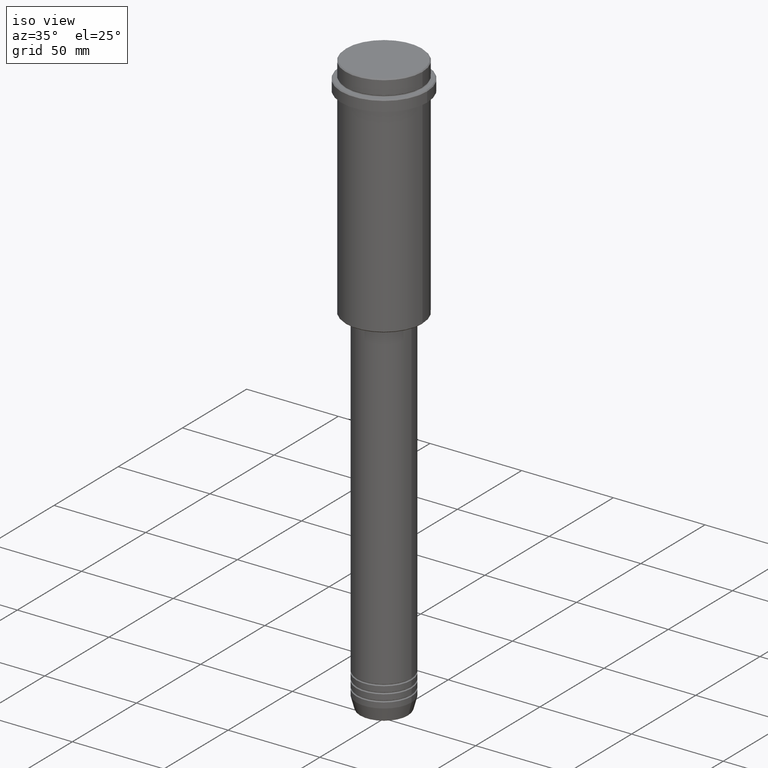
[diagram: clean part render]
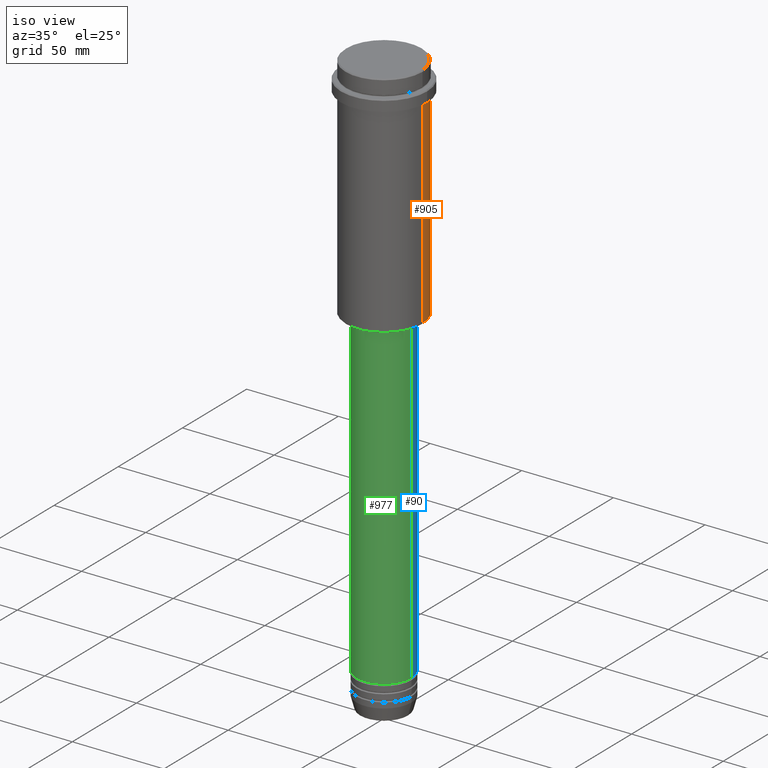
[diagram: same view with three faces highlighted in distinct colors, each labeled with its STEP entity id]
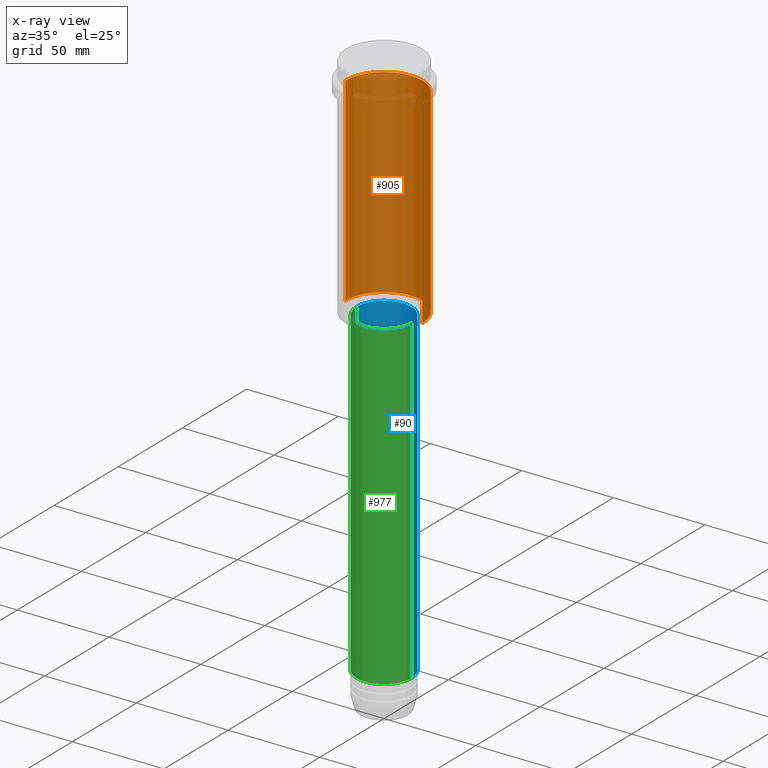
[diagram: x-ray of the same camera — body ghosted, the three highlighted faces saturated]
A machine part, iso view with three faces highlighted in distinct colors.
The next image is the same camera in x-ray (body ghosted, the three faces saturated) — at least one of them is partly hidden behind the body in this view.
Their STEP definitions:

[orange] entity #905 — the highlighted cylindrical surface (partial cylindrical patch) has radius 21 mm, axis along (-0, -0, 1).
#7 = AXIS2_PLACEMENT_3D ( 'NONE', #324, #994, #13 ) ;
#13 = DIRECTION ( 'NONE',  ( 1.000000000000000000, 0.000000000000000000, 0.000000000000000000 ) ) ;
#28 = EDGE_CURVE ( 'NONE', #831, #1359, #238, .T. ) ;
#57 = EDGE_CURVE ( 'NONE', #351, #1254, #128, .T. ) ;
#87 = DIRECTION ( 'NONE',  ( -0.000000000000000000, -0.000000000000000000, 1.000000000000000000 ) ) ;
#128 = LINE ( 'NONE', #356, #621 ) ;
#145 = ORIENTED_EDGE ( 'NONE', *, *, #1114, .F. ) ;
#168 = DIRECTION ( 'NONE',  ( -1.000000000000000000, 0.000000000000000000, 0.000000000000000000 ) ) ;
#187 = CIRCLE ( 'NONE', #7, 20.99999999999999645 ) ;
#194 = DIRECTION ( 'NONE',  ( 1.000000000000000000, 0.000000000000000000, 0.000000000000000000 ) ) ;
#235 = AXIS2_PLACEMENT_3D ( 'NONE', #1182, #87, #168 ) ;
#238 = LINE ( 'NONE', #1320, #1233 ) ;
#268 = ORIENTED_EDGE ( 'NONE', *, *, #28, .F. ) ;
#324 = CARTESIAN_POINT ( 'NONE',  ( 0.000000000000000000, 0.000000000000000000, -16.00000000000000355 ) ) ;
#351 = VERTEX_POINT ( 'NONE', #852 ) ;
#356 = CARTESIAN_POINT ( 'NONE',  ( -20.99999999999999645, 2.571758278209441267E-15, 0.000000000000000000 ) ) ;
#404 = CARTESIAN_POINT ( 'NONE',  ( 0.000000000000000000, 0.000000000000000000, 0.000000000000000000 ) ) ;
#522 = EDGE_LOOP ( 'NONE', ( #1227, #533, #145, #268 ) ) ;
#524 = CARTESIAN_POINT ( 'NONE',  ( 20.99999999999999645, 0.000000000000000000, -16.00000000000000355 ) ) ;
#533 = ORIENTED_EDGE ( 'NONE', *, *, #57, .T. ) ;
#613 = FACE_OUTER_BOUND ( 'NONE', #522, .T. ) ;
#621 = VECTOR ( 'NONE', #1095, 1000.000000000000000 ) ;
#666 = DIRECTION ( 'NONE',  ( -0.000000000000000000, -0.000000000000000000, 1.000000000000000000 ) ) ;
#767 = AXIS2_PLACEMENT_3D ( 'NONE', #404, #1177, #194 ) ;
#831 = VERTEX_POINT ( 'NONE', #1360 ) ;
#834 = CIRCLE ( 'NONE', #235, 20.99999999999999645 ) ;
#852 = CARTESIAN_POINT ( 'NONE',  ( -20.99999999999999645, 2.571758278209441267E-15, -124.4999999999999005 ) ) ;
#905 = ADVANCED_FACE ( 'NONE', ( #613 ), #948, .T. ) ;
#908 = CARTESIAN_POINT ( 'NONE',  ( -20.99999999999999645, 2.571758278209441267E-15, -16.00000000000000355 ) ) ;
#948 = CYLINDRICAL_SURFACE ( 'NONE', #767, 20.99999999999999645 ) ;
#994 = DIRECTION ( 'NONE',  ( -0.000000000000000000, -0.000000000000000000, 1.000000000000000000 ) ) ;
#1095 = DIRECTION ( 'NONE',  ( -0.000000000000000000, -0.000000000000000000, 1.000000000000000000 ) ) ;
#1114 = EDGE_CURVE ( 'NONE', #1359, #1254, #187, .T. ) ;
#1177 = DIRECTION ( 'NONE',  ( -0.000000000000000000, -0.000000000000000000, 1.000000000000000000 ) ) ;
#1182 = CARTESIAN_POINT ( 'NONE',  ( 0.000000000000000000, 0.000000000000000000, -124.4999999999999005 ) ) ;
#1227 = ORIENTED_EDGE ( 'NONE', *, *, #1371, .T. ) ;
#1233 = VECTOR ( 'NONE', #666, 1000.000000000000000 ) ;
#1254 = VERTEX_POINT ( 'NONE', #908 ) ;
#1320 = CARTESIAN_POINT ( 'NONE',  ( 20.99999999999999645, 0.000000000000000000, 0.000000000000000000 ) ) ;
#1359 = VERTEX_POINT ( 'NONE', #524 ) ;
#1360 = CARTESIAN_POINT ( 'NONE',  ( 20.99999999999999645, 0.000000000000000000, -124.4999999999999005 ) ) ;
#1371 = EDGE_CURVE ( 'NONE', #831, #351, #834, .T. ) ;

[blue] entity #90 — the highlighted cylindrical surface (edge-blend (fillet) strip) has radius 15 mm, axis along (-0, -0, 1).
#4 = VERTEX_POINT ( 'NONE', #675 ) ;
#6 = VERTEX_POINT ( 'NONE', #579 ) ;
#14 = FACE_OUTER_BOUND ( 'NONE', #258, .T. ) ;
#90 = ADVANCED_FACE ( 'NONE', ( #14 ), #661, .T. ) ;
#132 = AXIS2_PLACEMENT_3D ( 'NONE', #1315, #1213, #228 ) ;
#176 = DIRECTION ( 'NONE',  ( -0.000000000000000000, -0.000000000000000000, 1.000000000000000000 ) ) ;
#202 = VERTEX_POINT ( 'NONE', #504 ) ;
#228 = DIRECTION ( 'NONE',  ( 1.000000000000000000, 0.000000000000000000, 0.000000000000000000 ) ) ;
#258 = EDGE_LOOP ( 'NONE', ( #349, #900, #1196, #931 ) ) ;
#286 = DIRECTION ( 'NONE',  ( 1.000000000000000000, 0.000000000000000000, 0.000000000000000000 ) ) ;
#349 = ORIENTED_EDGE ( 'NONE', *, *, #622, .T. ) ;
#371 = VECTOR ( 'NONE', #176, 1000.000000000000000 ) ;
#389 = CARTESIAN_POINT ( 'NONE',  ( 0.000000000000000000, 0.000000000000000000, -125.9999999999999147 ) ) ;
#414 = DIRECTION ( 'NONE',  ( 1.000000000000000000, 0.000000000000000000, 0.000000000000000000 ) ) ;
#446 = CIRCLE ( 'NONE', #1305, 15.00000000000000000 ) ;
#465 = VECTOR ( 'NONE', #1136, 1000.000000000000000 ) ;
#504 = CARTESIAN_POINT ( 'NONE',  ( -15.00000000000000000, 1.836970198721029589E-15, -125.9999999999999147 ) ) ;
#507 = CARTESIAN_POINT ( 'NONE',  ( 0.000000000000000000, 0.000000000000000000, -300.9999999999998863 ) ) ;
#579 = CARTESIAN_POINT ( 'NONE',  ( 15.00000000000000000, 0.000000000000000000, -300.9999999999998863 ) ) ;
#622 = EDGE_CURVE ( 'NONE', #6, #4, #446, .T. ) ;
#629 = CIRCLE ( 'NONE', #1220, 15.00000000000000000 ) ;
#630 = CARTESIAN_POINT ( 'NONE',  ( 15.00000000000000000, 0.000000000000000000, 0.000000000000000000 ) ) ;
#661 = CYLINDRICAL_SURFACE ( 'NONE', #132, 15.00000000000000000 ) ;
#675 = CARTESIAN_POINT ( 'NONE',  ( -15.00000000000000000, 1.836970198721029589E-15, -300.9999999999998863 ) ) ;
#707 = CARTESIAN_POINT ( 'NONE',  ( 15.00000000000000000, 0.000000000000000000, -125.9999999999999147 ) ) ;
#748 = EDGE_CURVE ( 'NONE', #4, #202, #1040, .T. ) ;
#762 = VERTEX_POINT ( 'NONE', #707 ) ;
#826 = DIRECTION ( 'NONE',  ( -0.000000000000000000, -0.000000000000000000, 1.000000000000000000 ) ) ;
#900 = ORIENTED_EDGE ( 'NONE', *, *, #748, .T. ) ;
#931 = ORIENTED_EDGE ( 'NONE', *, *, #954, .F. ) ;
#954 = EDGE_CURVE ( 'NONE', #6, #762, #968, .T. ) ;
#968 = LINE ( 'NONE', #630, #371 ) ;
#1040 = LINE ( 'NONE', #1045, #465 ) ;
#1045 = CARTESIAN_POINT ( 'NONE',  ( -15.00000000000000000, 1.836970198721029589E-15, 0.000000000000000000 ) ) ;
#1136 = DIRECTION ( 'NONE',  ( -0.000000000000000000, -0.000000000000000000, 1.000000000000000000 ) ) ;
#1196 = ORIENTED_EDGE ( 'NONE', *, *, #1325, .F. ) ;
#1213 = DIRECTION ( 'NONE',  ( -0.000000000000000000, -0.000000000000000000, 1.000000000000000000 ) ) ;
#1220 = AXIS2_PLACEMENT_3D ( 'NONE', #389, #1269, #286 ) ;
#1269 = DIRECTION ( 'NONE',  ( -0.000000000000000000, -0.000000000000000000, 1.000000000000000000 ) ) ;
#1305 = AXIS2_PLACEMENT_3D ( 'NONE', #507, #826, #414 ) ;
#1315 = CARTESIAN_POINT ( 'NONE',  ( 0.000000000000000000, 0.000000000000000000, 0.000000000000000000 ) ) ;
#1325 = EDGE_CURVE ( 'NONE', #762, #202, #629, .T. ) ;

[green] entity #977 — the highlighted cylindrical surface (edge-blend (fillet) strip) has radius 15 mm, axis along (-0, -0, 1).
#4 = VERTEX_POINT ( 'NONE', #675 ) ;
#6 = VERTEX_POINT ( 'NONE', #579 ) ;
#63 = FACE_OUTER_BOUND ( 'NONE', #1248, .T. ) ;
#115 = CIRCLE ( 'NONE', #210, 15.00000000000000000 ) ;
#153 = DIRECTION ( 'NONE',  ( -0.000000000000000000, -0.000000000000000000, 1.000000000000000000 ) ) ;
#176 = DIRECTION ( 'NONE',  ( -0.000000000000000000, -0.000000000000000000, 1.000000000000000000 ) ) ;
#202 = VERTEX_POINT ( 'NONE', #504 ) ;
#210 = AXIS2_PLACEMENT_3D ( 'NONE', #974, #558, #344 ) ;
#344 = DIRECTION ( 'NONE',  ( 1.000000000000000000, 0.000000000000000000, 0.000000000000000000 ) ) ;
#352 = AXIS2_PLACEMENT_3D ( 'NONE', #1115, #153, #1013 ) ;
#371 = VECTOR ( 'NONE', #176, 1000.000000000000000 ) ;
#402 = CIRCLE ( 'NONE', #352, 15.00000000000000000 ) ;
#441 = ORIENTED_EDGE ( 'NONE', *, *, #748, .F. ) ;
#465 = VECTOR ( 'NONE', #1136, 1000.000000000000000 ) ;
#475 = ORIENTED_EDGE ( 'NONE', *, *, #954, .T. ) ;
#499 = ORIENTED_EDGE ( 'NONE', *, *, #1009, .F. ) ;
#504 = CARTESIAN_POINT ( 'NONE',  ( -15.00000000000000000, 1.836970198721029589E-15, -125.9999999999999147 ) ) ;
#532 = ORIENTED_EDGE ( 'NONE', *, *, #1199, .T. ) ;
#558 = DIRECTION ( 'NONE',  ( -0.000000000000000000, -0.000000000000000000, 1.000000000000000000 ) ) ;
#579 = CARTESIAN_POINT ( 'NONE',  ( 15.00000000000000000, 0.000000000000000000, -300.9999999999998863 ) ) ;
#601 = AXIS2_PLACEMENT_3D ( 'NONE', #619, #671, #1205 ) ;
#619 = CARTESIAN_POINT ( 'NONE',  ( 0.000000000000000000, 0.000000000000000000, 0.000000000000000000 ) ) ;
#630 = CARTESIAN_POINT ( 'NONE',  ( 15.00000000000000000, 0.000000000000000000, 0.000000000000000000 ) ) ;
#671 = DIRECTION ( 'NONE',  ( -0.000000000000000000, -0.000000000000000000, 1.000000000000000000 ) ) ;
#675 = CARTESIAN_POINT ( 'NONE',  ( -15.00000000000000000, 1.836970198721029589E-15, -300.9999999999998863 ) ) ;
#707 = CARTESIAN_POINT ( 'NONE',  ( 15.00000000000000000, 0.000000000000000000, -125.9999999999999147 ) ) ;
#748 = EDGE_CURVE ( 'NONE', #4, #202, #1040, .T. ) ;
#762 = VERTEX_POINT ( 'NONE', #707 ) ;
#938 = CYLINDRICAL_SURFACE ( 'NONE', #601, 15.00000000000000000 ) ;
#954 = EDGE_CURVE ( 'NONE', #6, #762, #968, .T. ) ;
#968 = LINE ( 'NONE', #630, #371 ) ;
#974 = CARTESIAN_POINT ( 'NONE',  ( 0.000000000000000000, 0.000000000000000000, -125.9999999999999147 ) ) ;
#977 = ADVANCED_FACE ( 'NONE', ( #63 ), #938, .T. ) ;
#1009 = EDGE_CURVE ( 'NONE', #202, #762, #115, .T. ) ;
#1013 = DIRECTION ( 'NONE',  ( 1.000000000000000000, 0.000000000000000000, 0.000000000000000000 ) ) ;
#1040 = LINE ( 'NONE', #1045, #465 ) ;
#1045 = CARTESIAN_POINT ( 'NONE',  ( -15.00000000000000000, 1.836970198721029589E-15, 0.000000000000000000 ) ) ;
#1115 = CARTESIAN_POINT ( 'NONE',  ( 0.000000000000000000, 0.000000000000000000, -300.9999999999998863 ) ) ;
#1136 = DIRECTION ( 'NONE',  ( -0.000000000000000000, -0.000000000000000000, 1.000000000000000000 ) ) ;
#1199 = EDGE_CURVE ( 'NONE', #4, #6, #402, .T. ) ;
#1205 = DIRECTION ( 'NONE',  ( 1.000000000000000000, 0.000000000000000000, 0.000000000000000000 ) ) ;
#1248 = EDGE_LOOP ( 'NONE', ( #441, #532, #475, #499 ) ) ;